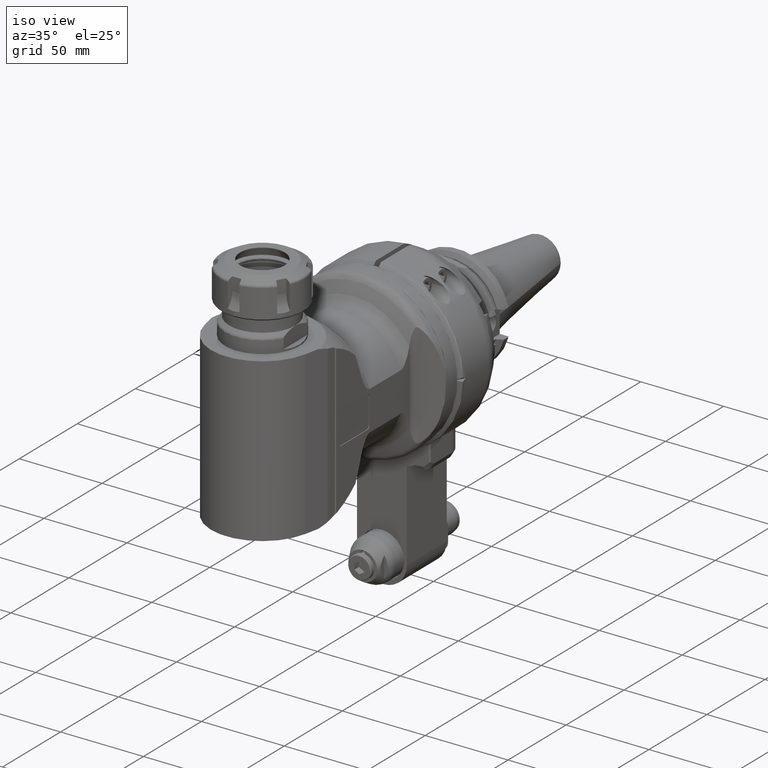
[diagram: clean part render]
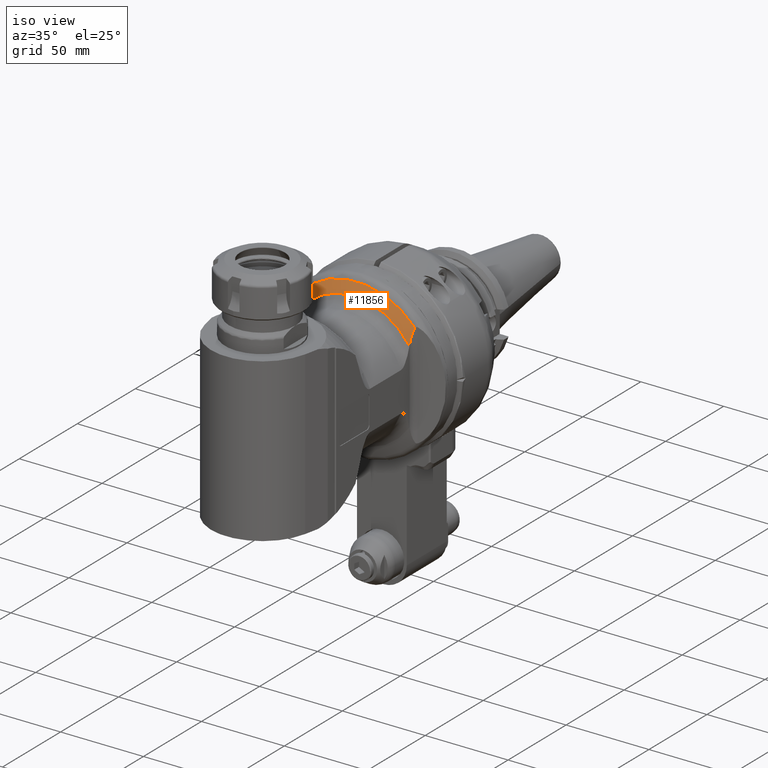
[diagram: same view with one face highlighted and labeled with its STEP entity id]
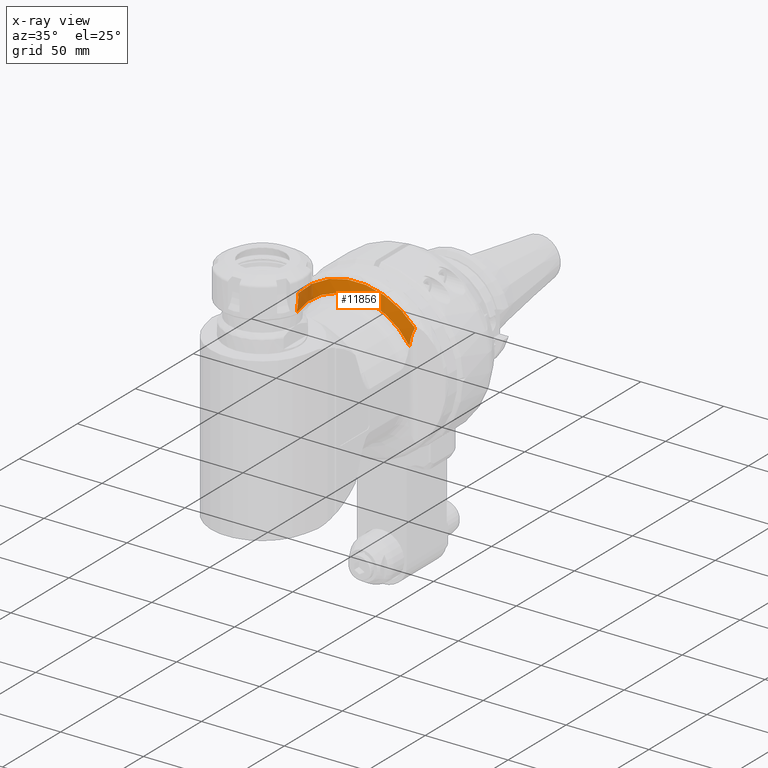
[diagram: x-ray of the same camera — body ghosted, the highlighted face saturated]
A machine part, iso view. The second image highlights one B-rep face of the part: STEP entity #11856.
The next image is the same camera in x-ray: the body ghosted, the highlighted face saturated — about 13% of this face is hidden behind the body in this view.
In plain terms, the highlighted conical surface has half-angle 65 deg.
Its self-contained STEP definition (entity closure, byte-faithful):
#60=CONICAL_SURFACE('',#12613,43.8660726827,1.13446401379631);
#235=(
BOUNDED_CURVE()
B_SPLINE_CURVE(2,(#17371,#17372,#17373),.UNSPECIFIED.,.F.,.F.)
B_SPLINE_CURVE_WITH_KNOTS((3,3),(1.07864842279424,1.10590893853555),
 .UNSPECIFIED.)
CURVE()
GEOMETRIC_REPRESENTATION_ITEM()
RATIONAL_B_SPLINE_CURVE((1.11342126184132,1.11460476665536,1.11577564847921))
REPRESENTATION_ITEM('')
);
#258=(
BOUNDED_CURVE()
B_SPLINE_CURVE(2,(#17592,#17593,#17594),.UNSPECIFIED.,.F.,.F.)
B_SPLINE_CURVE_WITH_KNOTS((3,3),(6.16316429996222,6.1904248157078),
 .UNSPECIFIED.)
CURVE()
GEOMETRIC_REPRESENTATION_ITEM()
RATIONAL_B_SPLINE_CURVE((1.11577564848434,1.11460476666033,1.11342126184614))
REPRESENTATION_ITEM('')
);
#344=B_SPLINE_CURVE_WITH_KNOTS('',3,(#17692,#17693,#17694,#17695,#17696,
#17697,#17698,#17699,#17700,#17701,#17702,#17703),.UNSPECIFIED.,.F.,.F.,
(4,2,2,2,2,4),(0.0997739753721131,0.164119844588905,0.247455831434621,0.400296157888808,
0.715773751995085,0.975847674785796),.UNSPECIFIED.);
#345=B_SPLINE_CURVE_WITH_KNOTS('',3,(#17706,#17707,#17708,#17709,#17710,
#17711,#17712,#17713,#17714,#17715,#17716,#17717),.UNSPECIFIED.,.F.,.F.,
(4,2,2,2,2,4),(5.24845933842711,5.50853326121871,5.82401085532499,5.97685118177917,
6.06018716862489,6.12453303785496),.UNSPECIFIED.);
#2694=FACE_OUTER_BOUND('',#3366,.T.);
#3366=EDGE_LOOP('',(#8002,#8003,#8004,#8005,#8006,#8007));
#4108=CIRCLE('',#12578,40.61905390607);
#4126=CIRCLE('',#12614,47.11309145933);
#4705=VERTEX_POINT('',#17305);
#4706=VERTEX_POINT('',#17318);
#4715=VERTEX_POINT('',#17370);
#4768=VERTEX_POINT('',#17591);
#4791=VERTEX_POINT('',#17691);
#4792=VERTEX_POINT('',#17704);
#6000=EDGE_CURVE('',#4705,#4706,#4108,.T.);
#6010=EDGE_CURVE('',#4715,#4706,#235,.T.);
#6074=EDGE_CURVE('',#4705,#4768,#258,.T.);
#6099=EDGE_CURVE('',#4791,#4768,#344,.T.);
#6100=EDGE_CURVE('',#4792,#4791,#4126,.T.);
#6101=EDGE_CURVE('',#4715,#4792,#345,.T.);
#8002=ORIENTED_EDGE('',*,*,#6074,.T.);
#8003=ORIENTED_EDGE('',*,*,#6099,.F.);
#8004=ORIENTED_EDGE('',*,*,#6100,.F.);
#8005=ORIENTED_EDGE('',*,*,#6101,.F.);
#8006=ORIENTED_EDGE('',*,*,#6010,.T.);
#8007=ORIENTED_EDGE('',*,*,#6000,.F.);
#11856=ADVANCED_FACE('',(#2694),#60,.T.);
#12578=AXIS2_PLACEMENT_3D('',#17319,#13888,#13889);
#12613=AXIS2_PLACEMENT_3D('',#17690,#13980,#13981);
#12614=AXIS2_PLACEMENT_3D('',#17705,#13982,#13983);
#13888=DIRECTION('center_axis',(1.,0.,0.));
#13889=DIRECTION('ref_axis',(0.,-0.547133144557407,0.83704559142661));
#13980=DIRECTION('center_axis',(-1.,0.,0.));
#13981=DIRECTION('ref_axis',(0.,-1.,0.));
#13982=DIRECTION('center_axis',(-1.,0.,0.));
#13983=DIRECTION('ref_axis',(0.,-1.,0.));
#17305=CARTESIAN_POINT('',(199.9375039441,-22.22403069258,34.));
#17318=CARTESIAN_POINT('',(199.9375039441,-22.22403069257,-34.));
#17319=CARTESIAN_POINT('Origin',(199.9375039441,0.,0.));
#17370=CARTESIAN_POINT('',(199.8639272009,-22.51112301207,-34.));
#17371=CARTESIAN_POINT('Ctrl Pts',(199.86392720093,-22.5111230120777,-34.));
#17372=CARTESIAN_POINT('Ctrl Pts',(199.900951665573,-22.3672985882799,-34.));
#17373=CARTESIAN_POINT('Ctrl Pts',(199.937503944114,-22.2240306925737,-34.));
#17591=CARTESIAN_POINT('',(199.8639272009,-22.51112301208,34.));
#17592=CARTESIAN_POINT('Ctrl Pts',(199.937503944274,-22.2240306919466,34.));
#17593=CARTESIAN_POINT('Ctrl Pts',(199.900951665729,-22.3672985876735,34.));
#17594=CARTESIAN_POINT('Ctrl Pts',(199.863927201081,-22.5111230114919,34.));
#17690=CARTESIAN_POINT('Origin',(198.4233942224,0.,0.));
#17691=CARTESIAN_POINT('',(196.909284501666,-31.197641652121,35.3036902037306));
#17692=CARTESIAN_POINT('Ctrl Pts',(196.909284501759,-31.1976416524674,35.303690203183));
#17693=CARTESIAN_POINT('Ctrl Pts',(197.002855799199,-31.0106402119476,35.2011538584506));
#17694=CARTESIAN_POINT('Ctrl Pts',(197.093380382329,-30.817288844984,35.112701446581));
#17695=CARTESIAN_POINT('Ctrl Pts',(197.282818318803,-30.3966997382881,34.9407984684583));
#17696=CARTESIAN_POINT('Ctrl Pts',(197.407485512355,-30.1042242458417,34.8406267936858));
#17697=CARTESIAN_POINT('Ctrl Pts',(197.694928596664,-29.4018627106173,34.6312606018711));
#17698=CARTESIAN_POINT('Ctrl Pts',(197.907861747891,-28.8427082796701,34.5056881458522));
#17699=CARTESIAN_POINT('Ctrl Pts',(198.43104870305,-27.3952659527972,34.2447406086038));
#17700=CARTESIAN_POINT('Ctrl Pts',(198.819156370089,-26.2003289654021,34.1267752193155));
#17701=CARTESIAN_POINT('Ctrl Pts',(199.367019023222,-24.3646443958043,34.022995041146));
#17702=CARTESIAN_POINT('Ctrl Pts',(199.62704599334,-23.4313065587749,33.9999999999984));
#17703=CARTESIAN_POINT('Ctrl Pts',(199.863927200927,-22.511123012087,34.));
#17704=CARTESIAN_POINT('',(196.909284501613,-31.1976416522546,-35.3036902037658));
#17705=CARTESIAN_POINT('Origin',(196.9092845007,0.,0.));
#17706=CARTESIAN_POINT('Ctrl Pts',(199.86392720093,-22.5111230120776,-34.));
#17707=CARTESIAN_POINT('Ctrl Pts',(199.627045993342,-23.4313065587686,-33.9999999999982));
#17708=CARTESIAN_POINT('Ctrl Pts',(199.367019023223,-24.3646443958014,-34.0229950411459));
#17709=CARTESIAN_POINT('Ctrl Pts',(198.819156370089,-26.2003289654021,-34.1267752193155));
#17710=CARTESIAN_POINT('Ctrl Pts',(198.43104870305,-27.3952659527972,-34.2447406086038));
#17711=CARTESIAN_POINT('Ctrl Pts',(197.907861747891,-28.8427082796701,-34.5056881458522));
#17712=CARTESIAN_POINT('Ctrl Pts',(197.694928596664,-29.4018627106173,-34.6312606018711));
#17713=CARTESIAN_POINT('Ctrl Pts',(197.407485512355,-30.1042242458417,-34.8406267936858));
#17714=CARTESIAN_POINT('Ctrl Pts',(197.282818318803,-30.3966997382881,-34.9407984684583));
#17715=CARTESIAN_POINT('Ctrl Pts',(197.093380382312,-30.8172888450218,-35.1127014465964));
#17716=CARTESIAN_POINT('Ctrl Pts',(197.002855799162,-31.0106402120274,-35.2011538584871));
#17717=CARTESIAN_POINT('Ctrl Pts',(196.909284501701,-31.1976416525832,-35.3036902032465));